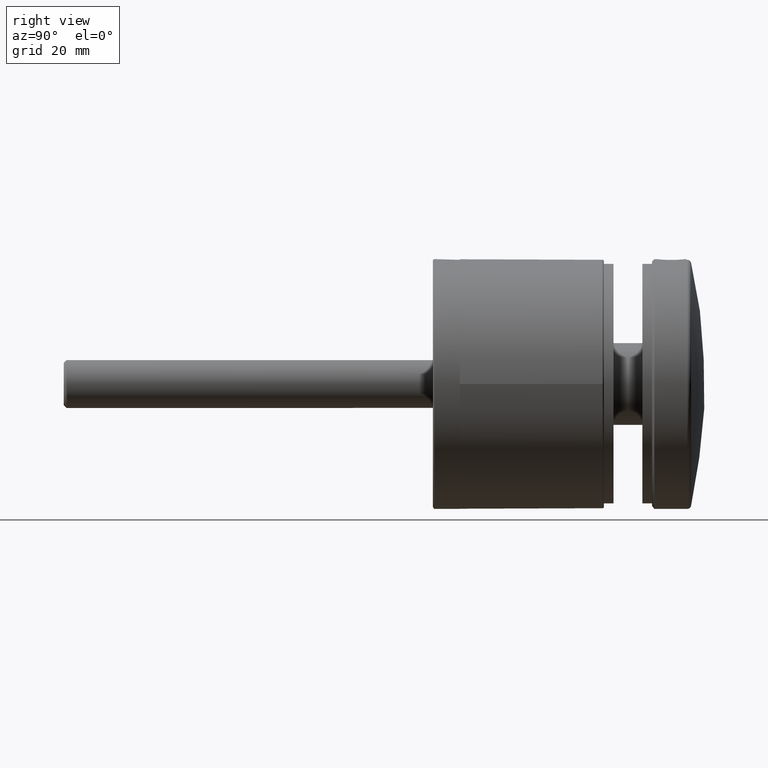
[diagram: clean part render]
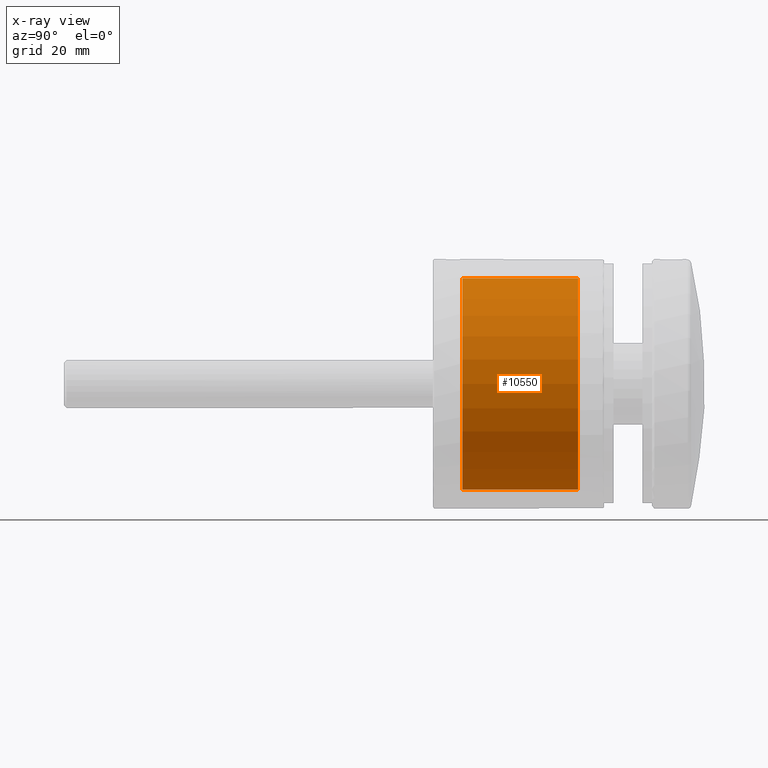
[diagram: x-ray — body ghosted, one internal face saturated and labeled with its STEP entity id]
A machine part, right view, then the same camera in x-ray: the body is ghosted and one INTERNAL B-rep face — a face not visible from any outside direction — is saturated and labeled: STEP entity #10550.
In plain terms, the highlighted cylindrical surface (bore or boss wall) has radius 22.05 mm, axis along (-0, -1, -0).
Its self-contained STEP definition (entity closure, byte-faithful):
#1213 = CARTESIAN_POINT ( 'NONE',  ( -7.639541999943332888E-15, 24.60000000000000142, 0.000000000000000000 ) ) ;
#1563 = CIRCLE ( 'NONE', #25685, 22.05000000000000782 ) ;
#3755 = DIRECTION ( 'NONE',  ( -5.445782988037737653E-17, -1.000000000000000000, 0.000000000000000000 ) ) ;
#4051 = DIRECTION ( 'NONE',  ( -5.445782988037777096E-17, -1.000000000000000000, -0.000000000000000000 ) ) ;
#4372 = CYLINDRICAL_SURFACE ( 'NONE', #18598, 22.05000000000000782 ) ;
#5522 = CIRCLE ( 'NONE', #23205, 22.05000000000000071 ) ;
#5710 = CARTESIAN_POINT ( 'NONE',  ( -8.951975700060437745E-15, 0.4999999999999761302, 0.000000000000000000 ) ) ;
#6406 = DIRECTION ( 'NONE',  ( 1.000000000000000000, -5.408718320789362388E-17, 0.000000000000000000 ) ) ;
#6453 = EDGE_CURVE ( 'NONE', #27215, #27215, #1563, .T. ) ;
#6591 = DIRECTION ( 'NONE',  ( 1.000000000000000000, 0.000000000000000000, 0.000000000000000000 ) ) ;
#6990 = DIRECTION ( 'NONE',  ( -5.445782988037777096E-17, -1.000000000000000000, -0.000000000000000000 ) ) ;
#7635 = CARTESIAN_POINT ( 'NONE',  ( 22.04999999999999361, 24.60000000000000142, 0.000000000000000000 ) ) ;
#10550 = ADVANCED_FACE ( 'NONE', ( #14730, #16801 ), #4372, .F. ) ;
#10632 = CARTESIAN_POINT ( 'NONE',  ( 22.04999999999999716, 0.4999999999999749645, 0.000000000000000000 ) ) ;
#12616 = DIRECTION ( 'NONE',  ( 1.000000000000000000, 0.000000000000000000, 0.000000000000000000 ) ) ;
#13742 = ORIENTED_EDGE ( 'NONE', *, *, #20438, .F. ) ;
#14730 = FACE_OUTER_BOUND ( 'NONE', #27397, .T. ) ;
#16801 = FACE_OUTER_BOUND ( 'NONE', #28494, .T. ) ;
#18598 = AXIS2_PLACEMENT_3D ( 'NONE', #28593, #6990, #12616 ) ;
#20438 = EDGE_CURVE ( 'NONE', #32782, #32782, #5522, .T. ) ;
#23205 = AXIS2_PLACEMENT_3D ( 'NONE', #1213, #4051, #6591 ) ;
#25623 = ORIENTED_EDGE ( 'NONE', *, *, #6453, .T. ) ;
#25685 = AXIS2_PLACEMENT_3D ( 'NONE', #5710, #3755, #6406 ) ;
#27215 = VERTEX_POINT ( 'NONE', #10632 ) ;
#27397 = EDGE_LOOP ( 'NONE', ( #25623 ) ) ;
#28494 = EDGE_LOOP ( 'NONE', ( #13742 ) ) ;
#28593 = CARTESIAN_POINT ( 'NONE',  ( -7.639541999943332888E-15, 24.59999999999999787, 0.000000000000000000 ) ) ;
#32782 = VERTEX_POINT ( 'NONE', #7635 ) ;